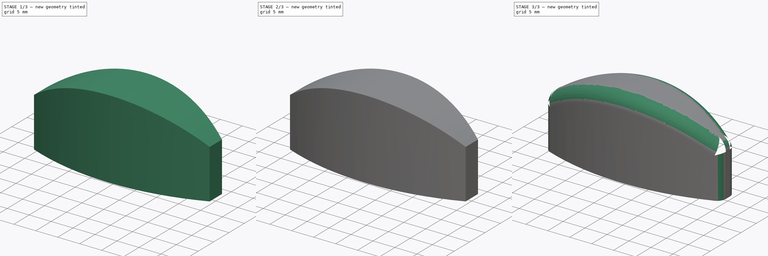
[diagram: build sequence overview — one tinted view per stage of 3, left to right]
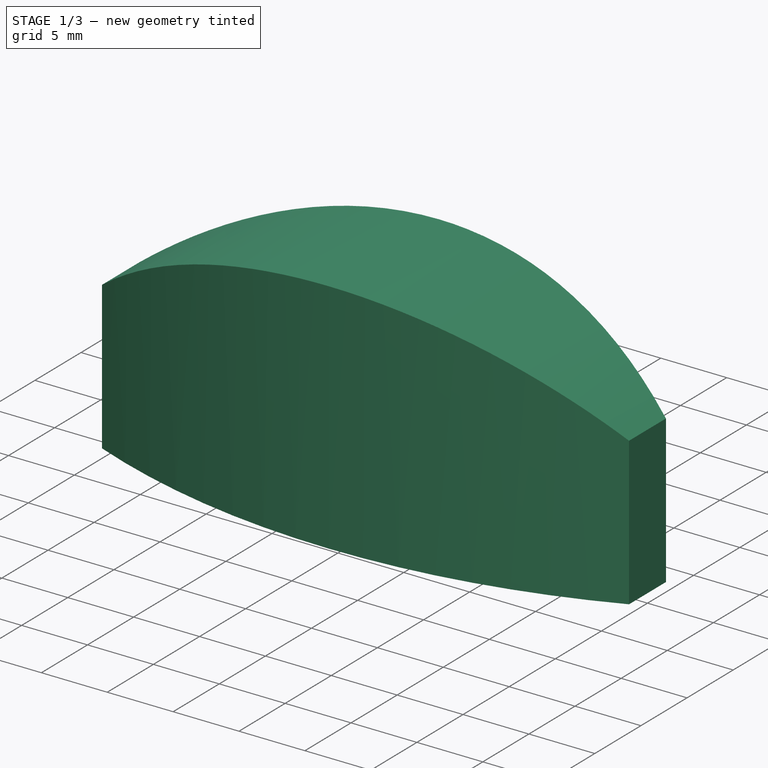
[diagram: stage 1 of 3 — iso view after this stage's code; geometry added in this stage tinted green]
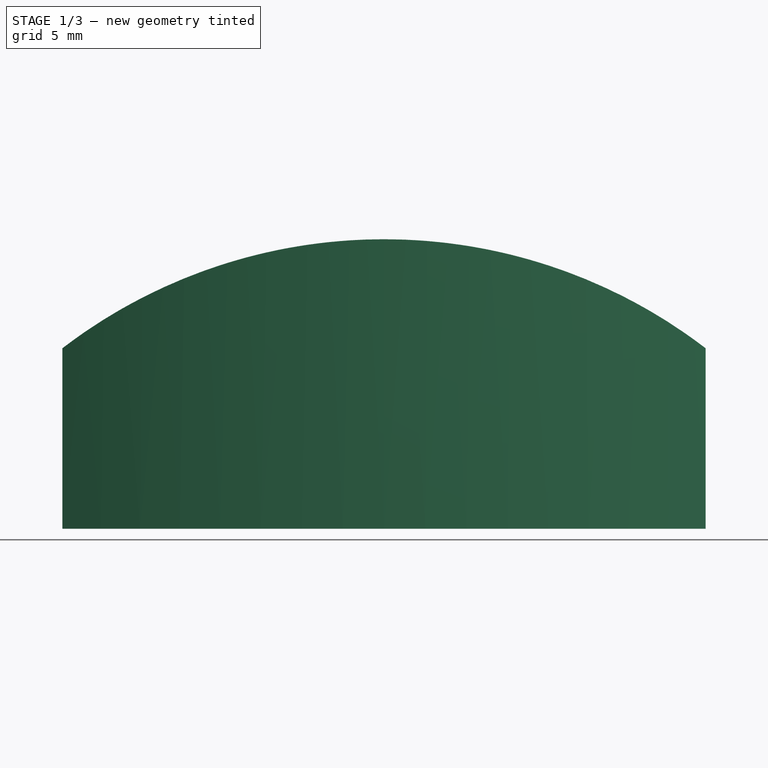
[diagram: stage 1 of 3 — front view after this stage's code; geometry added in this stage tinted green]
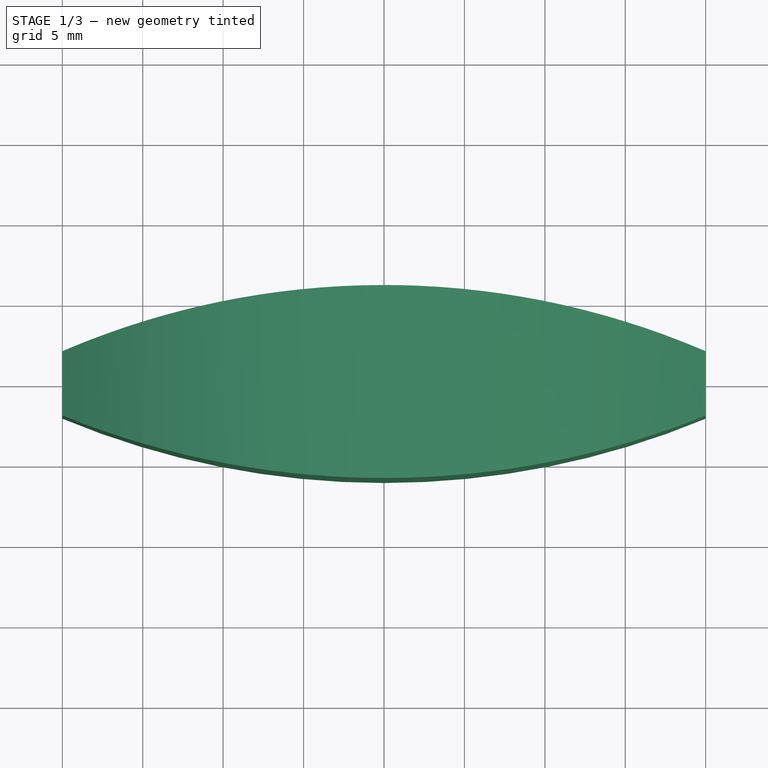
[diagram: stage 1 of 3 — top view after this stage's code; geometry added in this stage tinted green]
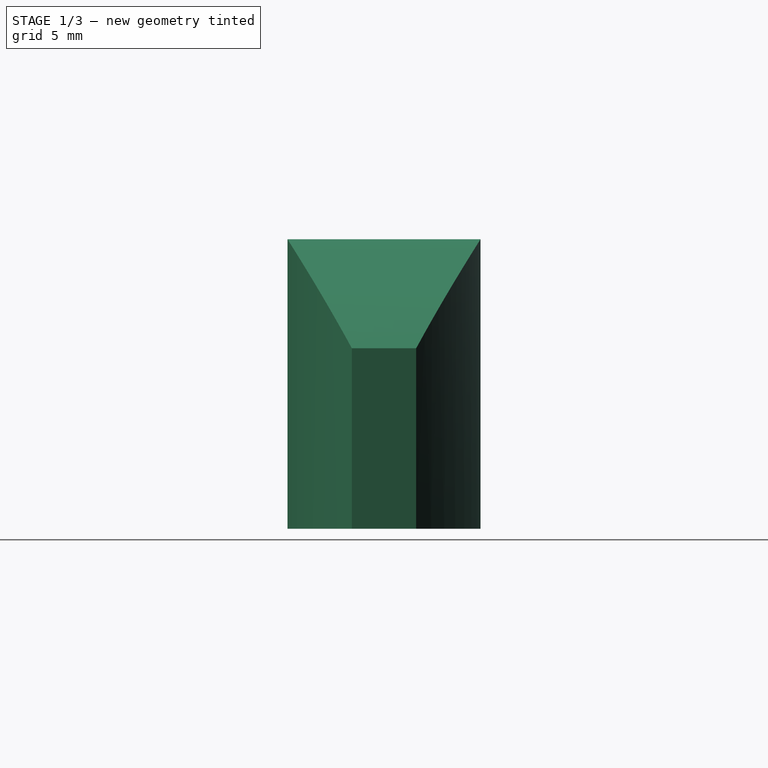
[diagram: stage 1 of 3 — right view after this stage's code; geometry added in this stage tinted green]
FCSTD DOCUMENT  (FreeCAD 1.0R)
Label: badminton_racket_stringing_machine_knob
License: All rights reserved
LicenseURL: https://en.wikipedia.org/wiki/All_rights_reserved
objects: Sketcher::SketchObject×5, PartDesign::Pocket×4, PartDesign::Fillet×2, PartDesign::Pad×1, PartDesign::Body×1
note: 32 computed .brp shape members not serialized (recipe doc carries the construction recipe); baked Part::Feature solids carry a one-line shape summary decoded from their .brp

FEATURE [Sketcher::SketchObject] Sketch
  ArcFitTolerance = 1e-06
  AttachmentSupport = -> [XY_Plane]
  FullyConstrained = true
  MakeInternals = false
  MapMode = 5
  sketch-geometry (18):
    g0: LineSegment [constr] StartX=-11 StartY=2 StartZ=0 EndX=-11 EndY=-2 EndZ=0
    g1: LineSegment [constr] StartX=-11 StartY=-2 StartZ=0 EndX=11 EndY=-2 EndZ=0
    g2: LineSegment [constr] StartX=11 StartY=-2 StartZ=0 EndX=11 EndY=2 EndZ=0
    g3: LineSegment [constr] StartX=11 StartY=2 StartZ=0 EndX=-11 EndY=2 EndZ=0
    g4: LineSegment [constr] StartX=-11 StartY=-2 StartZ=0 EndX=0 EndY=0 EndZ=0
    g5: LineSegment [constr] StartX=-11 StartY=2 StartZ=0 EndX=0 EndY=0 EndZ=0
    g6: LineSegment [constr] StartX=0 StartY=0 StartZ=0 EndX=11 EndY=2 EndZ=0
    g7: Circle [constr] CenterX=0 CenterY=0 CenterZ=0 NormalX=0 NormalY=0 NormalZ=1 AngleXU=0 Radius=5
    g8: ArcOfCircle CenterX=0 CenterY=-46 CenterZ=0 NormalX=0 NormalY=0 NormalZ=1 AngleXU=0 Radius=52 StartAngle=1.17601 EndAngle=1.96559
    g9: ArcOfCircle CenterX=0 CenterY=46 CenterZ=0 NormalX=0 NormalY=0 NormalZ=1 AngleXU=0 Radius=52 StartAngle=4.3176 EndAngle=5.10718
    g10: LineSegment StartX=-20 StartY=2 StartZ=0 EndX=-20 EndY=-2 EndZ=0
    g11: LineSegment StartX=20 StartY=-2 StartZ=0 EndX=20 EndY=2 EndZ=0
    g12: LineSegment [constr] StartX=-20 StartY=2 StartZ=0 EndX=0 EndY=-46 EndZ=0
    g13: LineSegment [constr] StartX=0 StartY=46 StartZ=0 EndX=20 EndY=-2 EndZ=0
    g14: LineSegment [constr] StartX=-20 StartY=-2 StartZ=0 EndX=-11 EndY=2 EndZ=0
    g15: LineSegment [constr] StartX=-20 StartY=2 StartZ=0 EndX=-11 EndY=-2 EndZ=0
    g16: LineSegment [constr] StartX=-20 StartY=-2 StartZ=0 EndX=0 EndY=-2 EndZ=0
    g17: LineSegment [constr] StartX=0 StartY=5 StartZ=0 EndX=0 EndY=6 EndZ=0
  constraints (49):
    c: Coincident(g0,g1)
    c: Coincident(g1,g2)
    c: Coincident(g2,g3)
    c: Coincident(g3,g0)
    c: Vertical(g0)
    c: Vertical(g2)
    c: Horizontal(g1)
    c: Horizontal(g3)
    c: Coincident(g4,g0)
    c: Coincident(g4,g-1)
    c: Coincident(g5,g0)
    c: Coincident(g5,g4)
    c: Coincident(g6,g4)
    c: Coincident(g6,g2)
    c: Equal(g6,g5)
    c: Equal(g5,g4)
    c: DistanceX(g3,g3) = 22
    c: Distance(g2,g2) = 4
    c: Coincident(g7,g4)
    c: Diameter(g7) = 10
    c: PointOnObject(g8,g-2)
    c: PointOnObject(g9,g-2)
    c: Coincident(g10,g8)
    c: Coincident(g10,g9)
    c: Coincident(g11,g9)
    c: Coincident(g11,g8)
    c: Vertical(g11)
    c: Vertical(g10)
    c: Coincident(g12,g8)
    c: Coincident(g12,g8)
    c: Coincident(g13,g9)
    c: Coincident(g13,g9)
    c: Equal(g13,g12)
    c: Distance(g11,g11) = 4
    c: Equal(g10,g11)
    c: Coincident(g14,g9)
    c: Coincident(g14,g0)
    c: Coincident(g15,g8)
    c: Coincident(g15,g0)
    c: Equal(g14,g15)
    c: Coincident(g16,g9)
    c: PointOnObject(g16,g-2)
    c: Horizontal(g16)
    c: DistanceX(g16,g16) = 20
    c: PointOnObject(g17,g7)
    c: PointOnObject(g17,g8)
    c: Vertical(g17)
    c: PointOnObject(g17,g-2)
    c: Distance(g17,g17) = 1
FEATURE [PartDesign::Pad] Pad
  Direction = (0,0,1)
  Length = 18
  Length2 = 10
  Profile = -> Sketch
  ReferenceAxis = -> Sketch [N_Axis]
  Refine = true
  Suppressed = false
  Type = 0
FEATURE [Sketcher::SketchObject] Sketch001
  ArcFitTolerance = 1e-06
  AttachmentSupport = -> [XZ_Plane]
  ExternalGeometry = -> [Pad]
  FullyConstrained = false
  MakeInternals = false
  MapMode = 5
  Placement = pos=(0,0,0) rot=(1,0,0;1.5708rad)
  sketch-geometry (6):
    g0: ArcOfCircle CenterX=0 CenterY=-14.8902 CenterZ=0 NormalX=0 NormalY=0 NormalZ=1 AngleXU=0 Radius=32.8902 StartAngle=0.917152 EndAngle=2.22444
    g1: LineSegment StartX=-20 StartY=11.2204 StartZ=0 EndX=-20 EndY=18 EndZ=0
    g2: LineSegment StartX=-20 StartY=18 StartZ=0 EndX=20 EndY=18 EndZ=0
    g3: LineSegment StartX=20 StartY=18 StartZ=0 EndX=20 EndY=11.2204 EndZ=0
    g4: LineSegment [constr] StartX=-20 StartY=11.2204 StartZ=0 EndX=20 EndY=11.2204 EndZ=0
    g5: LineSegment [constr] StartX=-2.1e-15 StartY=11.2204 StartZ=0 EndX=-2.1e-15 EndY=18 EndZ=0
  constraints (15):
    c: PointOnObject(g0,g-2)
    c: PointOnObject(g0,g-4)
    c: PointOnObject(g0,g-5)
    c: Coincident(g0,g1)
    c: Coincident(g1,g2)
    c: Coincident(g2,g3)
    c: Coincident(g3,g0)
    c: Coincident(g-4,g1)
    c: Coincident(g2,g-5)
    c: Coincident(g4,g0)
    c: Coincident(g4,g0)
    c: Symmetric(g4,g4,g5)
    c: PointOnObject(g5,g0)
    c: Vertical(g5)
    c: PointOnObject(g5,g2)
FEATURE [PartDesign::Pocket] Pocket
  BaseFeature = -> Pad
  Direction = (0,1,-2e-16)
  Length = 100
  Length2 = 100
  Midplane = true
  Profile = -> Sketch001
  ReferenceAxis = -> Sketch001 [N_Axis]
  Refine = true
  Suppressed = false
  Type = 0
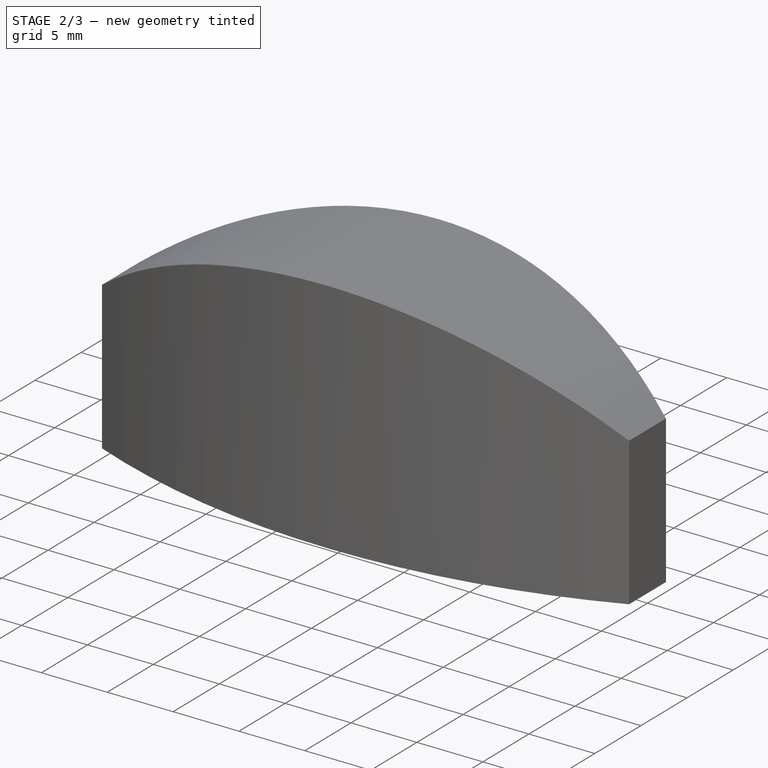
[diagram: stage 2 of 3 — iso view after this stage's code; geometry added in this stage tinted green]
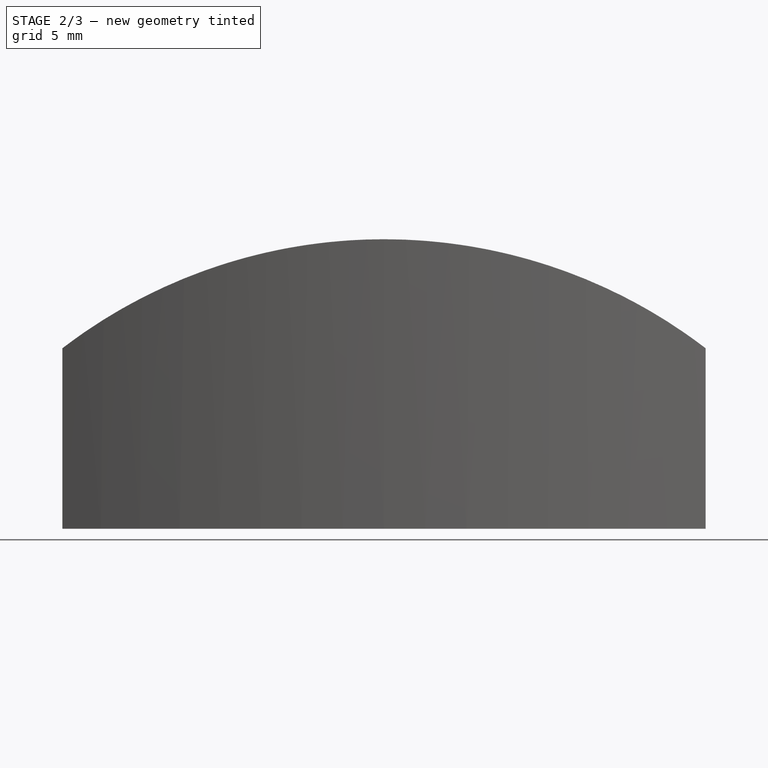
[diagram: stage 2 of 3 — front view after this stage's code; geometry added in this stage tinted green]
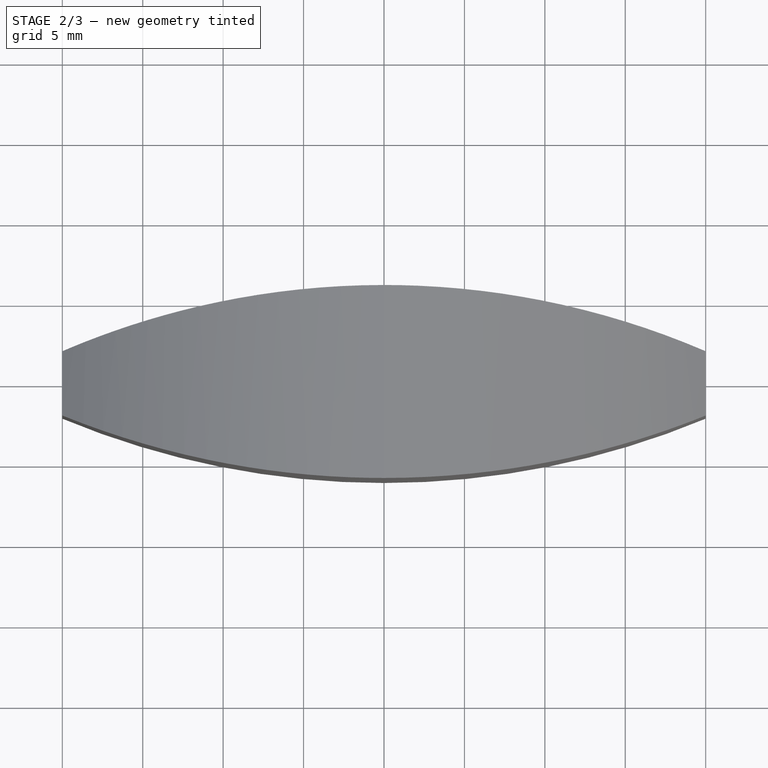
[diagram: stage 2 of 3 — top view after this stage's code; geometry added in this stage tinted green]
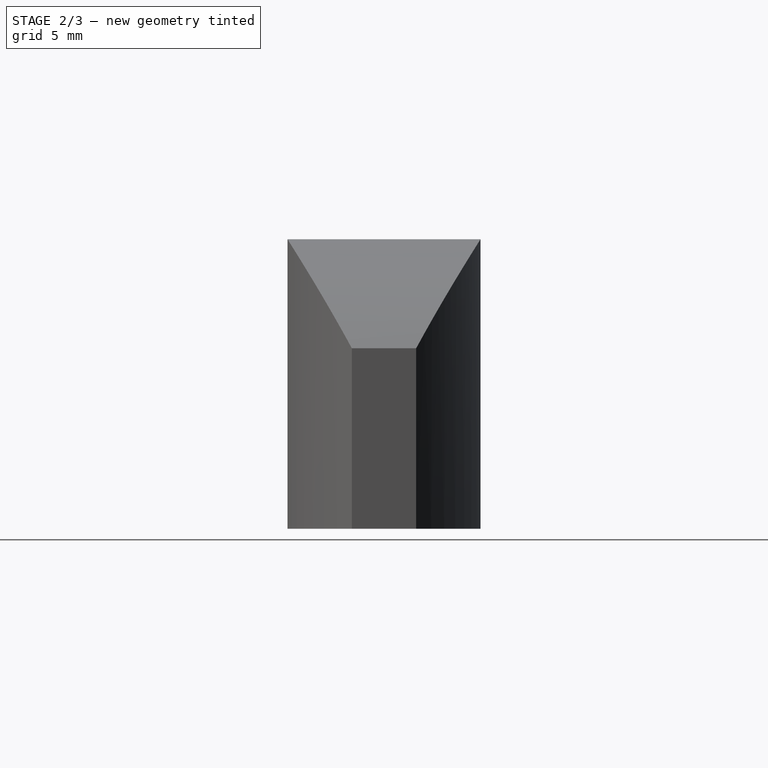
[diagram: stage 2 of 3 — right view after this stage's code; geometry added in this stage tinted green]
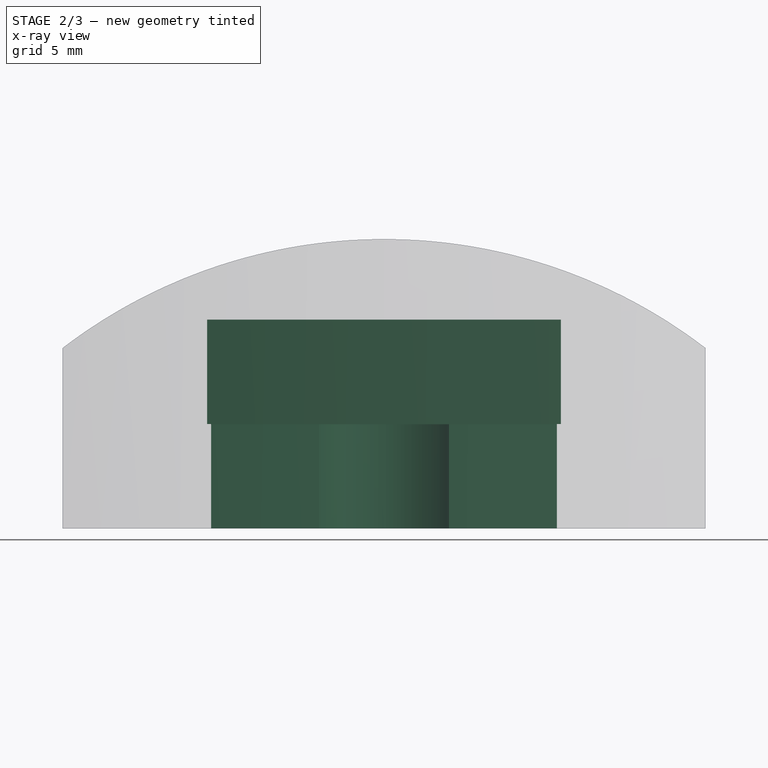
[diagram: stage 2 of 3 — x-ray composite at the front view; earlier geometry ghosted, this stage's added geometry solid]
FEATURE [Sketcher::SketchObject] Sketch002
  ArcFitTolerance = 1e-06
  AttachmentSupport = -> [Pocket]
  FullyConstrained = true
  MakeInternals = false
  MapMode = 5
  Placement = pos=(0,0,0) rot=(1,0,0;3.14159rad)
  sketch-geometry (1):
    g0: Circle CenterX=0 CenterY=0 CenterZ=0 NormalX=0 NormalY=0 NormalZ=1 AngleXU=0 Radius=4.75
  constraints (2):
    c: Coincident(g0,g-1)
    c: Diameter(g0) = 9.5
FEATURE [PartDesign::Pocket] Pocket001
  BaseFeature = -> Pocket
  Direction = (0,0,1)
  Length = 6.5
  Length2 = 5
  Profile = -> Sketch002
  ReferenceAxis = -> Sketch002 [N_Axis]
  Refine = true
  Suppressed = false
  Type = 0
FEATURE [Sketcher::SketchObject] Sketch003
  ArcFitTolerance = 1e-06
  AttachmentSupport = -> [YZ_Plane]
  ExternalGeometry = -> [Pocket001]
  FullyConstrained = true
  MakeInternals = false
  MapMode = 5
  Placement = pos=(0,0,0) rot=(0.57735,0.57735,0.57735;2.0944rad)
  sketch-geometry (13):
    g0: LineSegment [constr] StartX=-1 StartY=0 StartZ=0 EndX=1 EndY=0 EndZ=0
    g1: LineSegment [constr] StartX=1 StartY=0 StartZ=0 EndX=1 EndY=13 EndZ=0
    g2: LineSegment StartX=1 StartY=13 StartZ=0 EndX=-1 EndY=13 EndZ=0
    g3: LineSegment [constr] StartX=-1 StartY=13 StartZ=0 EndX=-1 EndY=0 EndZ=0
    g4: LineSegment [constr] StartX=-1 StartY=13 StartZ=0 EndX=-1e-16 EndY=0 EndZ=0
    g5: LineSegment [constr] StartX=-1e-16 StartY=0 StartZ=0 EndX=1 EndY=13 EndZ=0
    g6: LineSegment StartX=-1 StartY=13 StartZ=0 EndX=-1.75 EndY=6.5 EndZ=0
    g7: LineSegment StartX=-1.75 StartY=6.5 StartZ=0 EndX=1.75 EndY=6.5 EndZ=0
    g8: LineSegment StartX=1.75 StartY=6.5 StartZ=0 EndX=1 EndY=13 EndZ=0
    g9: LineSegment [constr] StartX=-1.75 StartY=6.5 StartZ=0 EndX=1 EndY=13 EndZ=0
    g10: LineSegment [constr] StartX=-1 StartY=13 StartZ=0 EndX=1.75 EndY=6.5 EndZ=0
    g11: LineSegment [constr] StartX=1 StartY=13 StartZ=0 EndX=4.75 EndY=13 EndZ=0
    g12: LineSegment [constr] StartX=4.75 StartY=13 StartZ=0 EndX=4.75 EndY=6.5 EndZ=0
  constraints (33):
    c: Coincident(g0,g1)
    c: Coincident(g1,g2)
    c: Coincident(g2,g3)
    c: Coincident(g3,g0)
    c: Horizontal(g0)
    c: Horizontal(g2)
    c: Vertical(g1)
    c: Vertical(g3)
    c: PointOnObject(g0,g-1)
    c: Coincident(g4,g2)
    c: Coincident(g4,g-1)
    c: Coincident(g5,g4)
    c: Coincident(g5,g1)
    c: Equal(g5,g4)
    c: Distance(g2,g2) = 2
    c: Coincident(g2,g6)
    c: PointOnObject(g6,g-3)
    c: Coincident(g6,g7)
    c: PointOnObject(g7,g-3)
    c: Coincident(g7,g8)
    c: Coincident(g8,g1)
    c: Coincident(g9,g6)
    c: Coincident(g9,g1)
    c: Coincident(g10,g2)
    c: Coincident(g10,g7)
    c: Equal(g10,g9)
    c: Distance(g7,g7) = 3.5
    c: Coincident(g11,g1)
    c: Horizontal(g11)
    c: Coincident(g12,g11)
    c: Coincident(g12,g-3)
    c: Vertical(g12)
    c: DistanceY(g12,g12) = 6.5
FEATURE [PartDesign::Pocket] Pocket002
  BaseFeature = -> Pocket001
  Direction = (-1,0,0)
  Length = 22
  Length2 = 11
  Midplane = true
  Profile = -> Sketch003
  ReferenceAxis = -> Sketch003 [N_Axis]
  Refine = true
  Suppressed = false
  Type = 0
FEATURE [Sketcher::SketchObject] Sketch004
  ArcFitTolerance = 1e-06
  AttachmentSupport = -> [Pocket002]
  FullyConstrained = true
  MakeInternals = false
  MapMode = 5
  Placement = pos=(0,0,0) rot=(1,0,0;3.14159rad)
  sketch-geometry (7):
    g0: LineSegment StartX=-10.75 StartY=2.5 StartZ=0 EndX=-10.75 EndY=-2.5 EndZ=0
    g1: LineSegment StartX=-10.75 StartY=-2.5 StartZ=0 EndX=10.75 EndY=-2.5 EndZ=0
    g2: LineSegment StartX=10.75 StartY=-2.5 StartZ=0 EndX=10.75 EndY=2.5 EndZ=0
    g3: LineSegment StartX=10.75 StartY=2.5 StartZ=0 EndX=-10.75 EndY=2.5 EndZ=0
    g4: LineSegment [constr] StartX=-10.75 StartY=2.5 StartZ=0 EndX=0 EndY=0 EndZ=0
    g5: LineSegment [constr] StartX=0 StartY=0 StartZ=0 EndX=-10.75 EndY=-2.5 EndZ=0
    g6: LineSegment [constr] StartX=0 StartY=0 StartZ=0 EndX=10.75 EndY=2.5 EndZ=0
  constraints (18):
    c: Coincident(g0,g1)
    c: Coincident(g1,g2)
    c: Coincident(g2,g3)
    c: Coincident(g3,g0)
    c: Vertical(g0)
    c: Vertical(g2)
    c: Horizontal(g1)
    c: Horizontal(g3)
    c: Coincident(g4,g0)
    c: Coincident(g4,g-1)
    c: Coincident(g5,g4)
    c: Coincident(g5,g0)
    c: Coincident(g6,g4)
    c: Coincident(g6,g2)
    c: Equal(g6,g4)
    c: Equal(g4,g5)
    c: Distance(g0,g0) = 5
    c: Distance(g3,g3) = 21.5
FEATURE [PartDesign::Pocket] Pocket003
  BaseFeature = -> Pocket002
  Direction = (0,0,1)
  Length = 6.5
  Length2 = 5
  Profile = -> Sketch004
  ReferenceAxis = -> Sketch004 [N_Axis]
  Refine = true
  Suppressed = false
  Type = 0
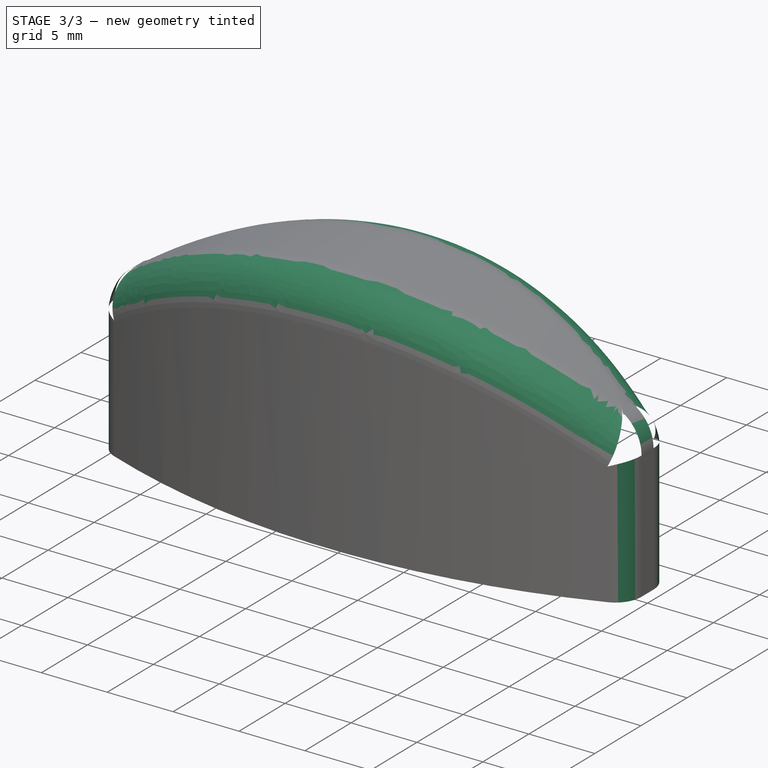
[diagram: stage 3 of 3 — iso view after this stage's code; geometry added in this stage tinted green]
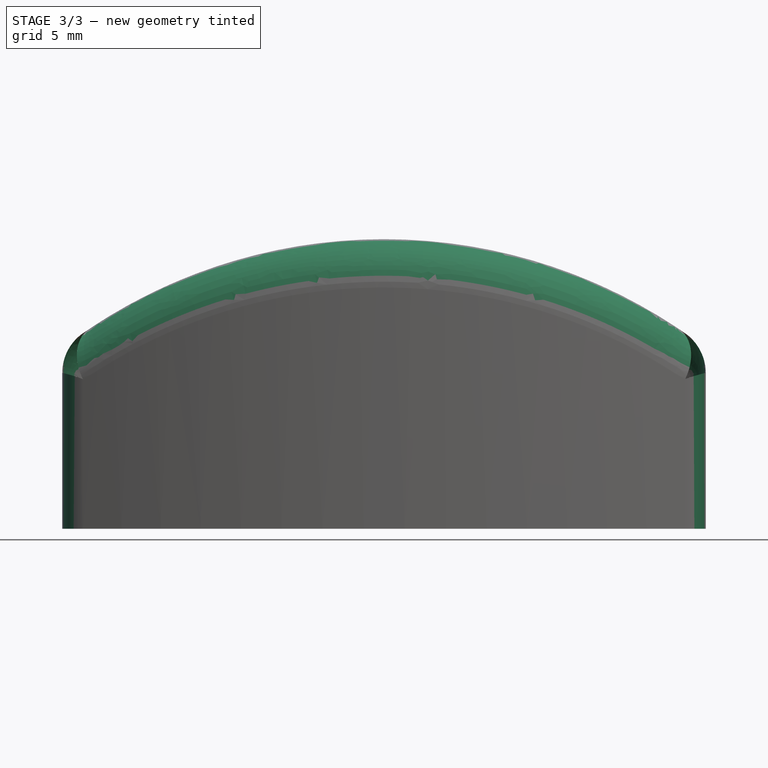
[diagram: stage 3 of 3 — front view after this stage's code; geometry added in this stage tinted green]
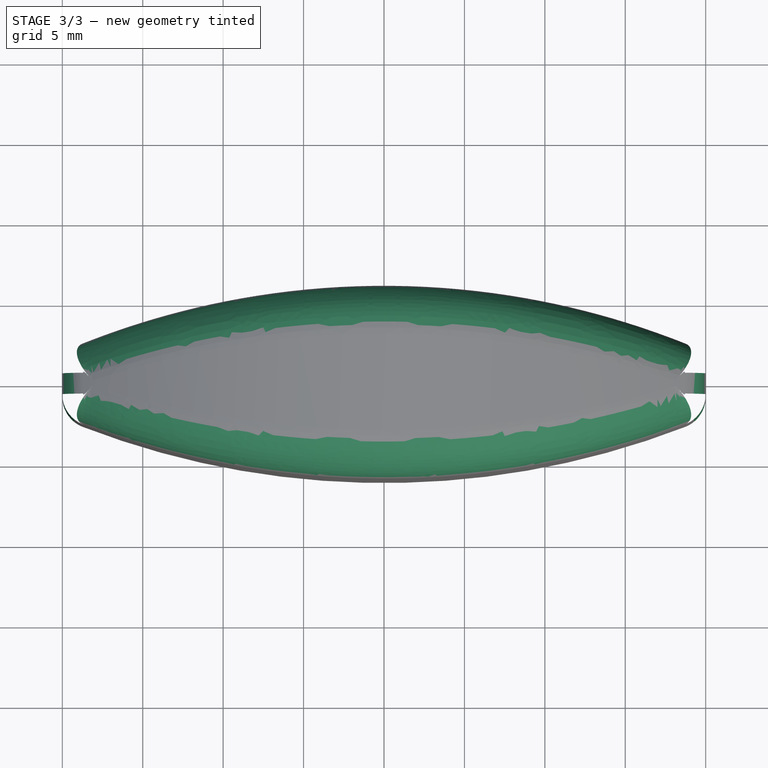
[diagram: stage 3 of 3 — top view after this stage's code; geometry added in this stage tinted green]
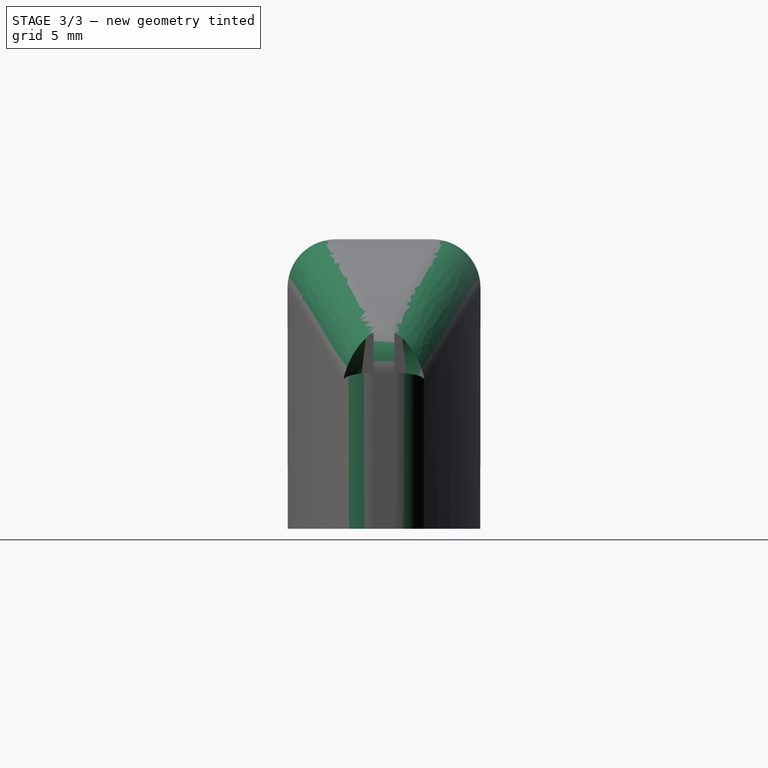
[diagram: stage 3 of 3 — right view after this stage's code; geometry added in this stage tinted green]
FEATURE [PartDesign::Fillet] Fillet
  Base = -> Pocket003 [Edge17,Edge2,Edge5,Edge22]
  BaseFeature = -> Pocket003
  Radius = 2
  Refine = true
  SupportTransform = false
  Suppressed = false
  UseAllEdges = false
FEATURE [PartDesign::Fillet] Fillet001
  Base = -> Fillet [Edge28]
  BaseFeature = -> Fillet
  Radius = 3
  Refine = true
  SupportTransform = false
  Suppressed = false
  UseAllEdges = false
FEATURE [PartDesign::Body] Body
  AllowCompound = false
  Group = -> [Sketch,Pad,Sketch001,Pocket,Sketch002,Pocket001,Sketch003,Pocket002,Sketch004,Pocket003,Fillet,Fillet001]
  Origin = -> Origin
  Tip = -> Fillet001
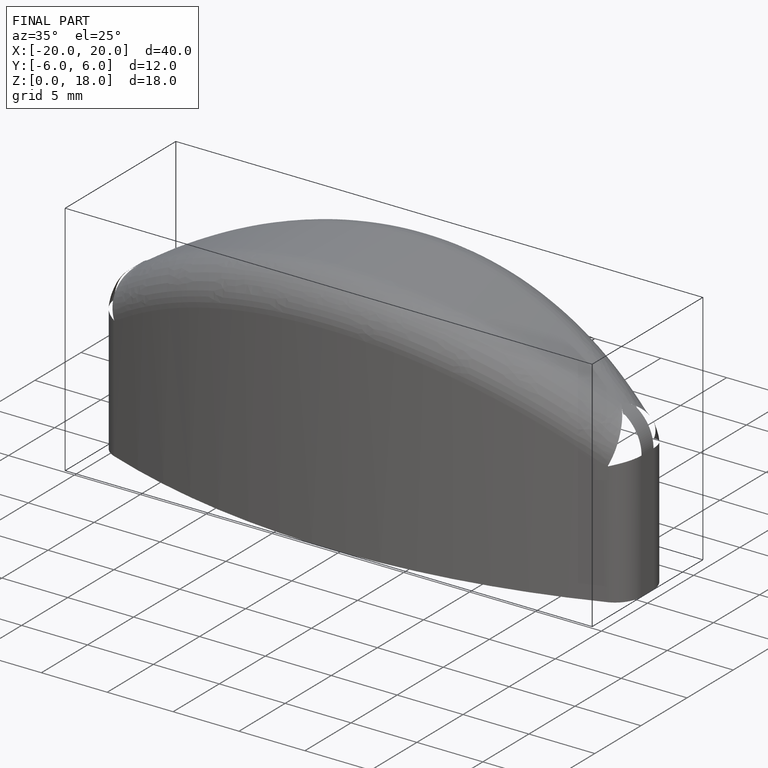
[diagram: finished part — iso view with bounding-box wireframe]
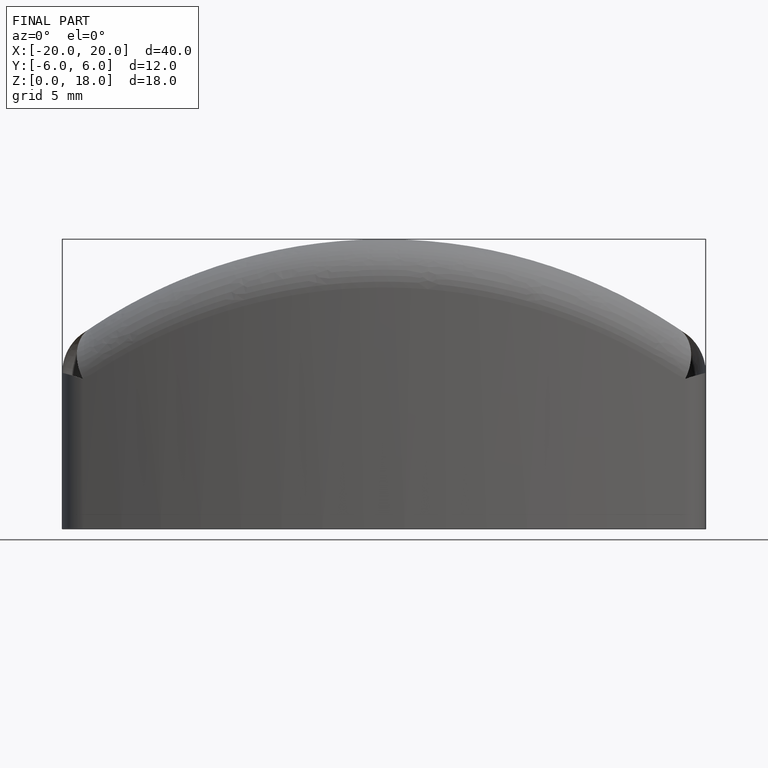
[diagram: finished part — front view with bounding-box wireframe]
